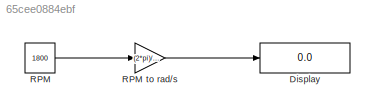
MODEL slx_65cee0884ebf
KIND model
CONFIG AbsTol = auto
CONFIG EnableMultiTasking = off
CONFIG FixedStep = auto
CONFIG MaxStep = auto
CONFIG MinStep = auto
CONFIG RelTol = 1e-3
CONFIG SampleTimeConstraint = Unconstrained
CONFIG SolverName = VariableStepAuto
CONFIG StartTime = 0.0
CONFIG StopTime = 10.0
BLOCK [Display] Display
  Decimation = 1
  Ports = [1]
BLOCK [Constant] RPM
  Value = 1800
BLOCK [Gain] RPM to rad//s
  Gain = (2*pi)/60
LINE RPM to rad//s:1 -> Display:1
LINE RPM:1 -> RPM to rad//s:1
